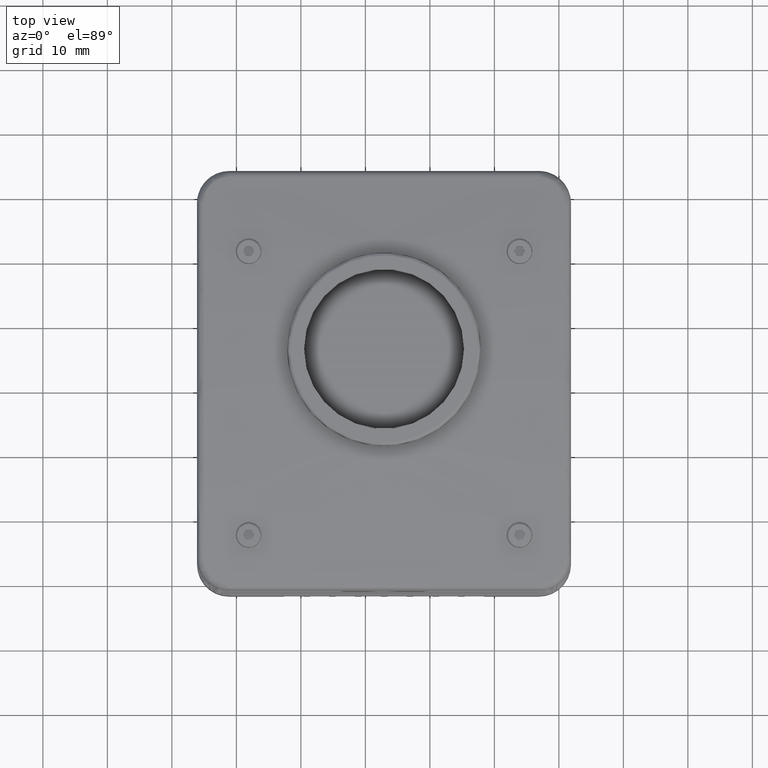
[diagram: clean part render]
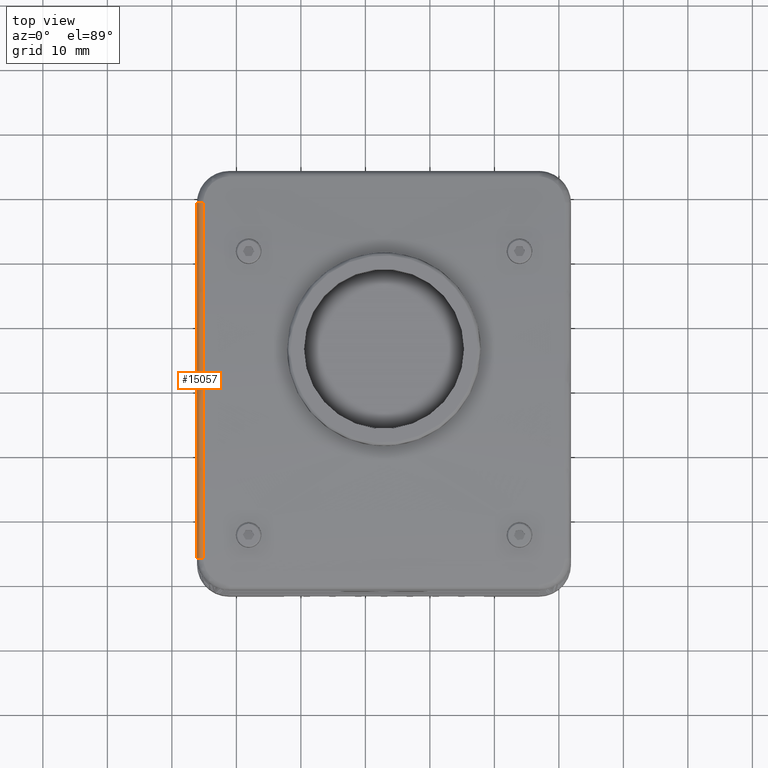
[diagram: same view with one face highlighted and labeled with its STEP entity id]
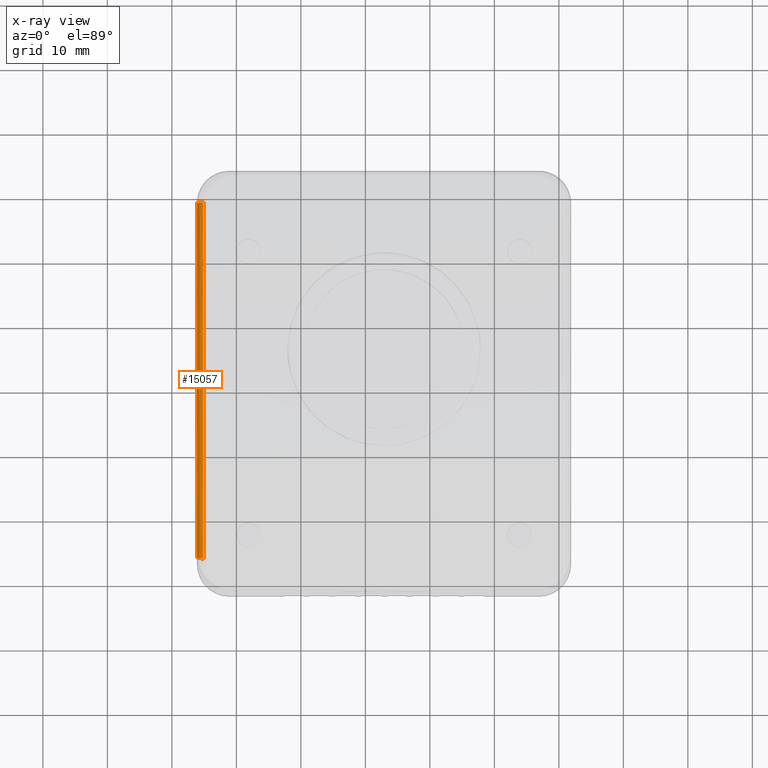
[diagram: x-ray of the same camera — body ghosted, the highlighted face saturated]
A machine part, top view. The second image highlights one B-rep face of the part: STEP entity #15057.
The next image is the same camera in x-ray: the body ghosted, the highlighted face saturated — about 0% of this face is hidden behind the body in this view.
In plain terms, the highlighted face is a freeform B-spline surface patch.
Its self-contained STEP definition (entity closure, byte-faithful):
#313 = DIRECTION ( 'NONE',  ( -3.787958447769635032E-15, -0.9936939319334729959, -0.1121265786448271962 ) ) ;
#2195 = CARTESIAN_POINT ( 'NONE',  ( -36.11446214189201953, -8.458787084350330332, 14.17173180771692920 ) ) ;
#3056 = VERTEX_POINT ( 'NONE', #37748 ) ;
#3960 = CARTESIAN_POINT ( 'NONE',  ( -35.11446214189199821, 0.7465793605689886592, -231.6045150059094908 ) ) ;
#5871 = DIRECTION ( 'NONE',  ( 0.000000000000000000, 0.1121265786448270296, -0.9936939319334729959 ) ) ;
#7579 = EDGE_CURVE ( 'NONE', #53040, #45356, #46548, .T. ) ;
#8163 = CARTESIAN_POINT ( 'NONE',  ( -35.11446214189202664, -8.496320402337259381, 15.17384270471250396 ) ) ;
#9198 = CARTESIAN_POINT ( 'NONE',  ( -35.11446214189199821, 28.24657936056899743, 12.10739931843543538 ) ) ;
#9332 = CARTESIAN_POINT ( 'NONE',  ( -36.11446214189199821, -26.75342063943100257, 12.10739931843549577 ) ) ;
#13986 = DIRECTION ( 'NONE',  ( 3.447568383321386060E-15, 0.9936939319334722187, -0.1121265786448340240 ) ) ;
#14190 = CARTESIAN_POINT ( 'NONE',  ( -35.11446214189199821, -26.86554721807585366, 13.10109325036892081 ) ) ;
#14575 = ORIENTED_EDGE ( 'NONE', *, *, #50729, .F. ) ;
#15057 = ADVANCED_FACE ( 'NONE', ( #69698 ), #16779, .T. ) ;
#15686 = CARTESIAN_POINT ( 'NONE',  ( -36.11446214189201953, 28.31226158963666961, 12.68949174691424808 ) ) ;
#16737 = EDGE_CURVE ( 'NONE', #3056, #28220, #17251, .T. ) ;
#16779 =( BOUNDED_SURFACE ( )  B_SPLINE_SURFACE ( 3, 3, ( 
 ( #70092, #64130, #8163, #21244 ),
 ( #75661, #33182, #20473, #38742 ),
 ( #15686, #45477, #39536, #63357 ),
 ( #44695, #63745, #2195, #9332 ) ),
 .UNSPECIFIED., .F., .F., .F. ) 
 B_SPLINE_SURFACE_WITH_KNOTS ( ( 4, 4 ),
 ( 4, 4 ),
 ( 0.000000000000000000, 1.000000000000000000 ),
 ( 0.000000000000000000, 1.000000000000000000 ),
 .UNSPECIFIED. ) 
 GEOMETRIC_REPRESENTATION_ITEM ( )  RATIONAL_B_SPLINE_SURFACE ( (
 ( 1.000000000000000000, 0.9957959546223149605, 0.9957959546223149605, 1.000000000000000000),
 ( 0.8047378541243719319, 0.8013546996684920432, 0.8013546996684920432, 0.8047378541243719319),
 ( 0.8047378541243719319, 0.8013546996684920432, 0.8013546996684920432, 0.8047378541243719319),
 ( 1.000000000000000000, 0.9957959546223149605, 0.9957959546223149605, 1.000000000000000000) ) ) 
 REPRESENTATION_ITEM ( '' )  SURFACE ( )  );
#17251 =( BOUNDED_CURVE ( )  B_SPLINE_CURVE ( 3, ( #49225, #37313, #25396, #36156 ),
 .UNSPECIFIED., .F., .F. ) 
 B_SPLINE_CURVE_WITH_KNOTS ( ( 4, 4 ),
 ( 0.000000000000000000, 1.000000000000000000 ),
 .UNSPECIFIED. ) 
 CURVE ( )  GEOMETRIC_REPRESENTATION_ITEM ( )  RATIONAL_B_SPLINE_CURVE ( ( 1.000000000000000000, 0.9957959546223149605, 0.9957959546223149605, 1.000000000000000000 ) ) 
 REPRESENTATION_ITEM ( '' )  );
#19252 = CIRCLE ( 'NONE', #20509, 0.9999999999999995559 ) ;
#20473 = CARTESIAN_POINT ( 'NONE',  ( -35.70024857951889175, -8.496320402337255828, 15.17384270471250396 ) ) ;
#20509 = AXIS2_PLACEMENT_3D ( 'NONE', #9198, #13986, #57276 ) ;
#21244 = CARTESIAN_POINT ( 'NONE',  ( -35.11446214189199821, -26.86554721807585366, 13.10109325036894035 ) ) ;
#25396 = CARTESIAN_POINT ( 'NONE',  ( -36.11446214189201953, -8.458787084350321450, 14.17173180771691499 ) ) ;
#28080 = EDGE_LOOP ( 'NONE', ( #14575, #52317, #63239, #71691 ) ) ;
#28200 = DIRECTION ( 'NONE',  ( -1.408863657800101781E-16, 1.000000000000000000, 0.000000000000000000 ) ) ;
#28220 = VERTEX_POINT ( 'NONE', #62083 ) ;
#33182 = CARTESIAN_POINT ( 'NONE',  ( -35.70024857951889175, 9.989479123475268452, 15.17384270471249152 ) ) ;
#36156 = CARTESIAN_POINT ( 'NONE',  ( -36.11446214189199821, -26.75342063943100257, 12.10739931843546024 ) ) ;
#37313 = CARTESIAN_POINT ( 'NONE',  ( -36.11446214189201953, 9.951945805488337626, 14.17173180771692031 ) ) ;
#37748 = CARTESIAN_POINT ( 'NONE',  ( -36.11446214189199821, 28.24657936056899743, 12.10739931843545136 ) ) ;
#38554 = DIRECTION ( 'NONE',  ( 1.000000000000000000, 1.549750023580109963E-16, 0.000000000000000000 ) ) ;
#38742 = CARTESIAN_POINT ( 'NONE',  ( -35.70024857951889885, -26.86554721807586787, 13.10109325036894212 ) ) ;
#39536 = CARTESIAN_POINT ( 'NONE',  ( -36.11446214189197690, -8.480773592986210474, 14.75875478017507092 ) ) ;
#41635 = CARTESIAN_POINT ( 'NONE',  ( -35.11446214189199821, -26.75342063943100257, 12.10739931843545669 ) ) ;
#42634 = CARTESIAN_POINT ( 'NONE',  ( -35.11446214189199821, 28.35870593921385208, 13.10109325036891548 ) ) ;
#44695 = CARTESIAN_POINT ( 'NONE',  ( -36.11446214189199821, 28.24657936056899743, 12.10739931843548156 ) ) ;
#45356 = VERTEX_POINT ( 'NONE', #14190 ) ;
#45477 = CARTESIAN_POINT ( 'NONE',  ( -36.11446214189197690, 9.973932314124224874, 14.75875478017506026 ) ) ;
#46548 = CIRCLE ( 'NONE', #56719, 246.2585313167245147 ) ;
#49225 = CARTESIAN_POINT ( 'NONE',  ( -36.11446214189199821, 28.24657936056899743, 12.10739931843545136 ) ) ;
#50729 = EDGE_CURVE ( 'NONE', #45356, #28220, #57649, .T. ) ;
#51385 = EDGE_CURVE ( 'NONE', #3056, #53040, #19252, .T. ) ;
#52317 = ORIENTED_EDGE ( 'NONE', *, *, #7579, .F. ) ;
#53040 = VERTEX_POINT ( 'NONE', #42634 ) ;
#56719 = AXIS2_PLACEMENT_3D ( 'NONE', #3960, #38554, #28200 ) ;
#57276 = DIRECTION ( 'NONE',  ( 0.000000000000000000, 0.1121265786448340795, 0.9936939319334721077 ) ) ;
#57649 = CIRCLE ( 'NONE', #75389, 1.000000000000000444 ) ;
#62083 = CARTESIAN_POINT ( 'NONE',  ( -36.11446214189199821, -26.75342063943100257, 12.10739931843546024 ) ) ;
#63239 = ORIENTED_EDGE ( 'NONE', *, *, #51385, .F. ) ;
#63357 = CARTESIAN_POINT ( 'NONE',  ( -36.11446214189195558, -26.81910286849867475, 12.68949174691426229 ) ) ;
#63745 = CARTESIAN_POINT ( 'NONE',  ( -36.11446214189201953, 9.951945805488337626, 14.17173180771692031 ) ) ;
#64130 = CARTESIAN_POINT ( 'NONE',  ( -35.11446214189202664, 9.989479123475280886, 15.17384270471249508 ) ) ;
#69698 = FACE_OUTER_BOUND ( 'NONE', #28080, .T. ) ;
#70092 = CARTESIAN_POINT ( 'NONE',  ( -35.11446214189199821, 28.35870593921385208, 13.10109325036892436 ) ) ;
#71691 = ORIENTED_EDGE ( 'NONE', *, *, #16737, .T. ) ;
#75389 = AXIS2_PLACEMENT_3D ( 'NONE', #41635, #313, #5871 ) ;
#75661 = CARTESIAN_POINT ( 'NONE',  ( -35.70024857951889885, 28.35870593921385918, 13.10109325036892436 ) ) ;